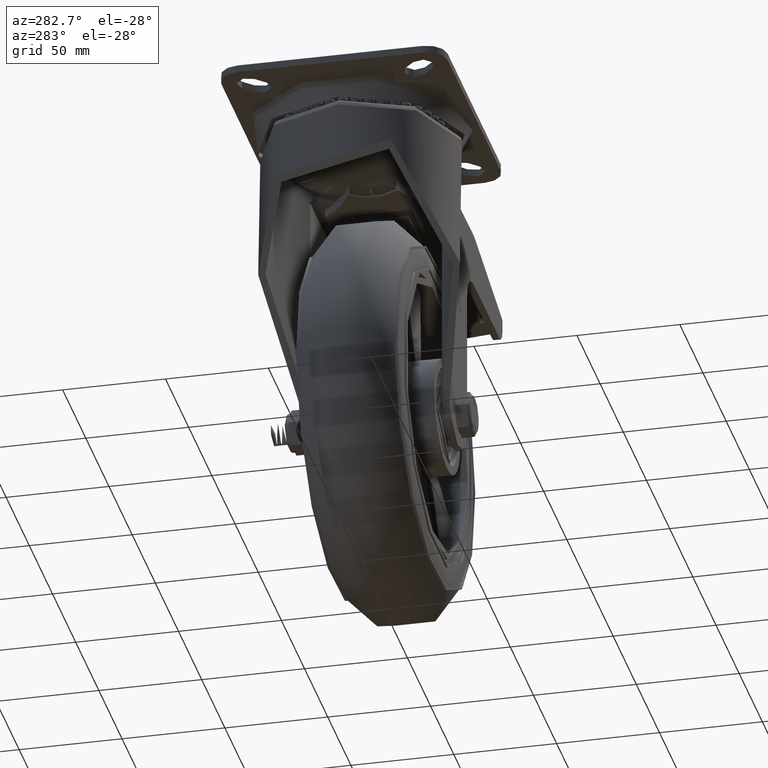
[diagram: clean part render]
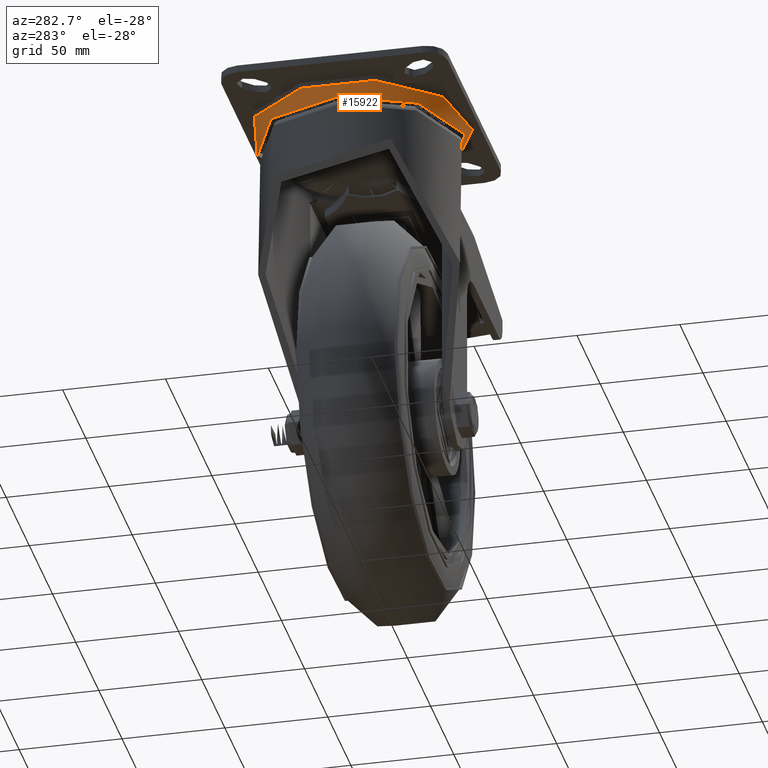
[diagram: same view with one face highlighted and labeled with its STEP entity id]
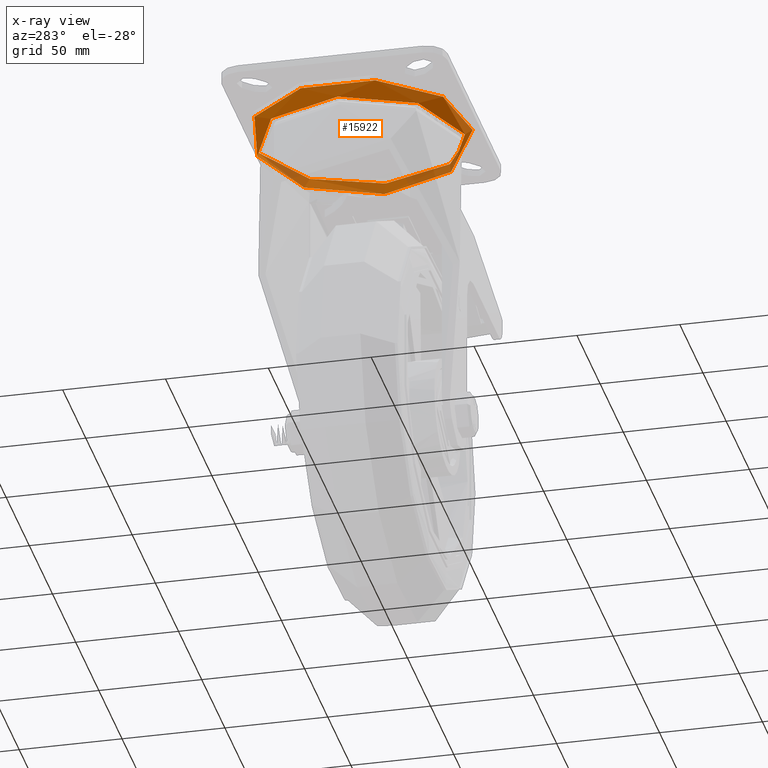
[diagram: x-ray of the same camera — body ghosted, the highlighted face saturated]
A machine part, auxiliary view. The second image highlights one B-rep face of the part: STEP entity #15922.
The next image is the same camera in x-ray: the body ghosted, the highlighted face saturated — about 12% of this face is hidden behind the body in this view.
In plain terms, the highlighted conical surface has half-angle 19.654 deg.
Its self-contained STEP definition (entity closure, byte-faithful):
#1396=CONICAL_SURFACE('',#17273,51.7208709557974,0.343023940420704);
#2178=FACE_OUTER_BOUND('',#3140,.T.);
#3140=EDGE_LOOP('',(#11302,#11303,#11304,#11305));
#4234=LINE('',#25521,#5325);
#5325=VECTOR('',#19050,51.7208709557974);
#6417=CIRCLE('',#17267,52.9708709557974);
#6420=CIRCLE('',#17272,50.4708709557974);
#7058=VERTEX_POINT('',#25507);
#7061=VERTEX_POINT('',#25517);
#8702=EDGE_CURVE('',#7058,#7058,#6417,.T.);
#8708=EDGE_CURVE('',#7061,#7061,#6420,.T.);
#8709=EDGE_CURVE('',#7058,#7061,#4234,.T.);
#11302=ORIENTED_EDGE('',*,*,#8702,.T.);
#11303=ORIENTED_EDGE('',*,*,#8709,.T.);
#11304=ORIENTED_EDGE('',*,*,#8708,.F.);
#11305=ORIENTED_EDGE('',*,*,#8709,.F.);
#15922=ADVANCED_FACE('',(#2178),#1396,.T.);
#17267=AXIS2_PLACEMENT_3D('',#25508,#19033,#19034);
#17272=AXIS2_PLACEMENT_3D('',#25519,#19046,#19047);
#17273=AXIS2_PLACEMENT_3D('',#25520,#19048,#19049);
#19033=DIRECTION('center_axis',(0.,0.,-1.));
#19034=DIRECTION('ref_axis',(-1.,0.,0.));
#19046=DIRECTION('center_axis',(0.,0.,-1.));
#19047=DIRECTION('ref_axis',(-1.,0.,0.));
#19048=DIRECTION('center_axis',(0.,0.,1.));
#19049=DIRECTION('ref_axis',(-1.,0.,0.));
#19050=DIRECTION('',(-0.336336396998157,-4.11893292020546E-17,-0.941741911594837));
#25507=CARTESIAN_POINT('',(52.9708709557974,6.48706075640648E-15,-6.16816819849906));
#25508=CARTESIAN_POINT('Origin',(0.,0.,-6.16816819849906));
#25517=CARTESIAN_POINT('',(50.4708709557974,6.18089905661964E-15,-13.1681681984991));
#25519=CARTESIAN_POINT('Origin',(0.,0.,-13.1681681984991));
#25520=CARTESIAN_POINT('Origin',(0.,0.,-9.66816819849906));
#25521=CARTESIAN_POINT('',(51.7208709557974,6.33397990651306E-15,-9.66816819849906));